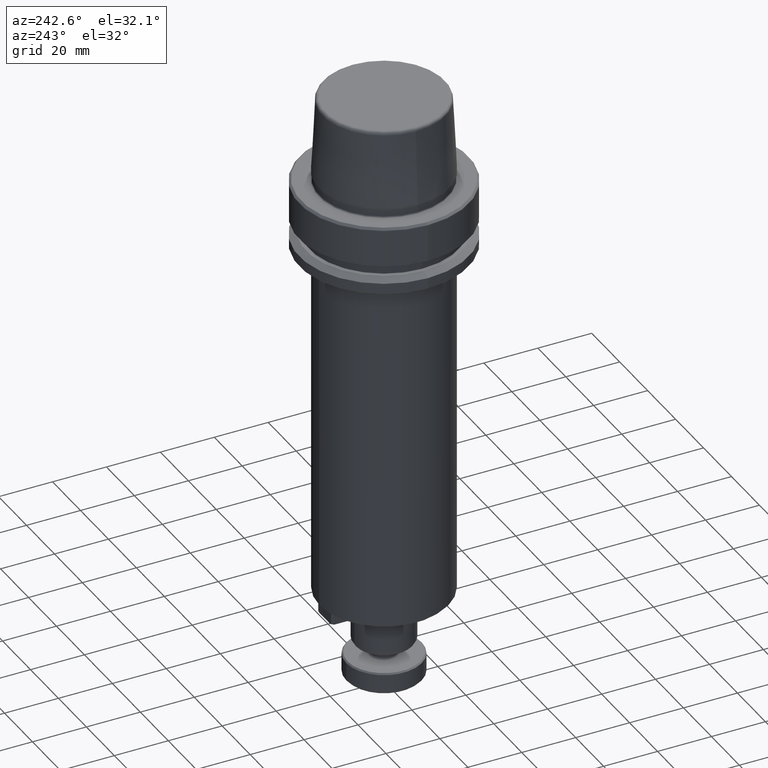
[diagram: clean part render]
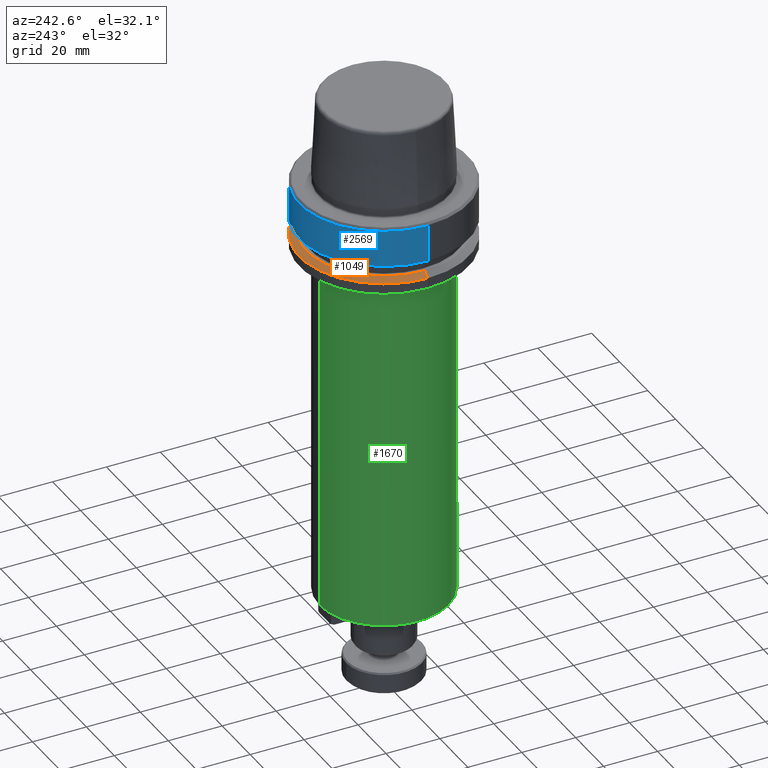
[diagram: same view with three faces highlighted in distinct colors, each labeled with its STEP entity id]
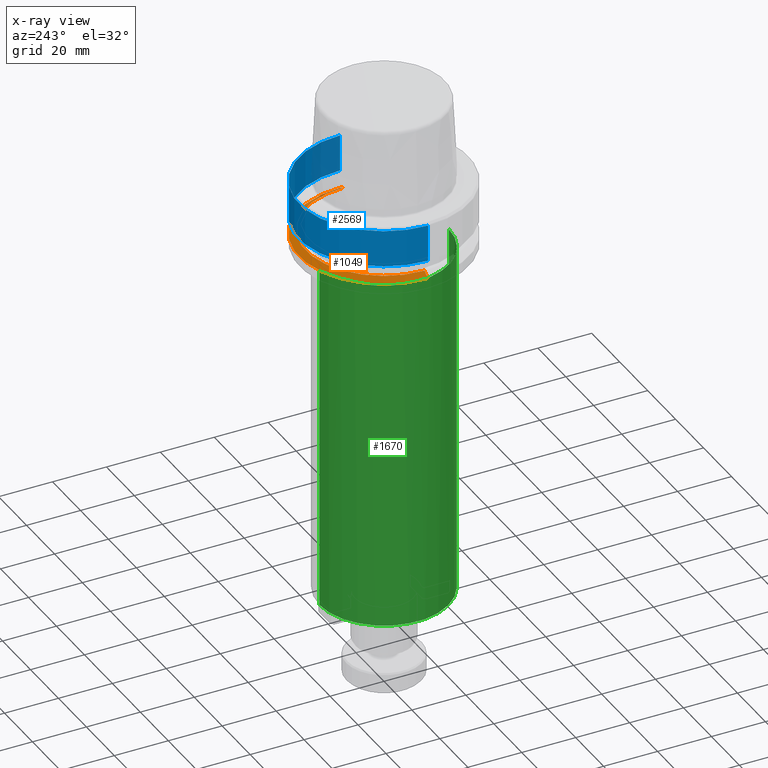
[diagram: x-ray of the same camera — body ghosted, the three highlighted faces saturated]
A machine part, auxiliary view with three faces highlighted in distinct colors.
The next image is the same camera in x-ray (body ghosted, the three faces saturated) — at least one of them is partly hidden behind the body in this view.
Their STEP definitions:

[orange] entity #1049 — the highlighted conical surface has half-angle 60 deg.
#37 = CARTESIAN_POINT ( 'NONE',  ( 0.0000000000000000000, 0.0000000000000000000, -21.37749907475931700 ) ) ;
#178 = DIRECTION ( 'NONE',  ( 0.0000000000000000000, 0.0000000000000000000, -1.000000000000000000 ) ) ;
#205 = ORIENTED_EDGE ( 'NONE', *, *, #2195, .T. ) ;
#208 = ORIENTED_EDGE ( 'NONE', *, *, #1834, .F. ) ;
#241 = CIRCLE ( 'NONE', #1373, 31.50000000000000000 ) ;
#245 = ORIENTED_EDGE ( 'NONE', *, *, #1929, .F. ) ;
#252 = DIRECTION ( 'NONE',  ( 1.000000000000000000, 0.0000000000000000000, 0.0000000000000000000 ) ) ;
#262 = CARTESIAN_POINT ( 'NONE',  ( 0.0000000000000000000, 0.0000000000000000000, -19.90000000000001600 ) ) ;
#299 = LINE ( 'NONE', #2300, #863 ) ;
#320 = CARTESIAN_POINT ( 'NONE',  ( -28.94089653438085100, 0.0000000000000000000, -19.90000000000001600 ) ) ;
#365 = EDGE_LOOP ( 'NONE', ( #208, #205, #2008, #245 ) ) ;
#475 = DIRECTION ( 'NONE',  ( 1.000000000000000000, 0.0000000000000000000, 0.0000000000000000000 ) ) ;
#503 = VERTEX_POINT ( 'NONE', #2680 ) ;
#598 = CIRCLE ( 'NONE', #1803, 28.94089653438085100 ) ;
#618 = CARTESIAN_POINT ( 'NONE',  ( 0.0000000000000000000, 0.0000000000000000000, -21.37749907475931700 ) ) ;
#753 = DIRECTION ( 'NONE',  ( 0.8660254037844410400, 1.060575238724909700E-016, -0.4999999999999958400 ) ) ;
#826 = LINE ( 'NONE', #2474, #1354 ) ;
#863 = VECTOR ( 'NONE', #753, 1000.000000000000100 ) ;
#969 = CARTESIAN_POINT ( 'NONE',  ( 31.50000000000000000, 0.0000000000000000000, -21.37749907475931700 ) ) ;
#1032 = DIRECTION ( 'NONE',  ( -1.000000000000000000, 0.0000000000000000000, 0.0000000000000000000 ) ) ;
#1049 = ADVANCED_FACE ( 'NONE', ( #2425 ), #1191, .T. ) ;
#1173 = CARTESIAN_POINT ( 'NONE',  ( 28.94089653438085100, 3.700937523921292900E-015, -19.90000000000001600 ) ) ;
#1191 = CONICAL_SURFACE ( 'NONE', #1387, 31.50000000000000000, 1.047197551196602500 ) ;
#1353 = VERTEX_POINT ( 'NONE', #320 ) ;
#1354 = VECTOR ( 'NONE', #1394, 1000.000000000000100 ) ;
#1373 = AXIS2_PLACEMENT_3D ( 'NONE', #37, #1555, #252 ) ;
#1387 = AXIS2_PLACEMENT_3D ( 'NONE', #618, #178, #1032 ) ;
#1394 = DIRECTION ( 'NONE',  ( -0.8660254037844410400, 0.0000000000000000000, -0.4999999999999958400 ) ) ;
#1555 = DIRECTION ( 'NONE',  ( -0.0000000000000000000, -0.0000000000000000000, 1.000000000000000000 ) ) ;
#1766 = EDGE_CURVE ( 'NONE', #2182, #503, #241, .T. ) ;
#1779 = DIRECTION ( 'NONE',  ( -0.0000000000000000000, -0.0000000000000000000, 1.000000000000000000 ) ) ;
#1803 = AXIS2_PLACEMENT_3D ( 'NONE', #262, #1779, #475 ) ;
#1834 = EDGE_CURVE ( 'NONE', #2116, #1353, #598, .T. ) ;
#1929 = EDGE_CURVE ( 'NONE', #1353, #503, #826, .T. ) ;
#2008 = ORIENTED_EDGE ( 'NONE', *, *, #1766, .T. ) ;
#2116 = VERTEX_POINT ( 'NONE', #1173 ) ;
#2182 = VERTEX_POINT ( 'NONE', #969 ) ;
#2195 = EDGE_CURVE ( 'NONE', #2116, #2182, #299, .T. ) ;
#2300 = CARTESIAN_POINT ( 'NONE',  ( 31.50000000000000000, 3.857637417314162700E-015, -21.37749907475931700 ) ) ;
#2425 = FACE_OUTER_BOUND ( 'NONE', #365, .T. ) ;
#2474 = CARTESIAN_POINT ( 'NONE',  ( -31.50000000000000000, 0.0000000000000000000, -21.37749907475931700 ) ) ;
#2680 = CARTESIAN_POINT ( 'NONE',  ( -31.50000000000000000, 3.857637417314162700E-015, -21.37749907475931700 ) ) ;

[blue] entity #2569 — the highlighted cylindrical surface (partial cylindrical patch) has radius 31.5 mm, axis along (-0, -0, 1).
#61 = DIRECTION ( 'NONE',  ( 1.000000000000000000, 0.0000000000000000000, 0.0000000000000000000 ) ) ;
#247 = EDGE_CURVE ( 'NONE', #1214, #2197, #507, .T. ) ;
#257 = CYLINDRICAL_SURFACE ( 'NONE', #843, 31.50000000000000000 ) ;
#399 = ORIENTED_EDGE ( 'NONE', *, *, #553, .F. ) ;
#418 = EDGE_CURVE ( 'NONE', #1214, #1420, #582, .T. ) ;
#491 = VECTOR ( 'NONE', #1809, 1000.000000000000000 ) ;
#507 = LINE ( 'NONE', #2785, #838 ) ;
#553 = EDGE_CURVE ( 'NONE', #2197, #1140, #1501, .T. ) ;
#582 = CIRCLE ( 'NONE', #2280, 31.50000000000000000 ) ;
#707 = CARTESIAN_POINT ( 'NONE',  ( -31.50000000000000000, 3.857637417314162700E-015, -14.62250092524070100 ) ) ;
#739 = CARTESIAN_POINT ( 'NONE',  ( 0.0000000000000000000, 0.0000000000000000000, -0.9656854249492363700 ) ) ;
#810 = ORIENTED_EDGE ( 'NONE', *, *, #2081, .T. ) ;
#838 = VECTOR ( 'NONE', #1459, 1000.000000000000000 ) ;
#843 = AXIS2_PLACEMENT_3D ( 'NONE', #2543, #2103, #1236 ) ;
#979 = CARTESIAN_POINT ( 'NONE',  ( 31.50000000000000700, 0.0000000000000000000, -0.9656854249492363700 ) ) ;
#1001 = CARTESIAN_POINT ( 'NONE',  ( 31.50000000000000000, 0.0000000000000000000, -14.62250092524070100 ) ) ;
#1140 = VERTEX_POINT ( 'NONE', #2387 ) ;
#1203 = AXIS2_PLACEMENT_3D ( 'NONE', #739, #1914, #2805 ) ;
#1211 = EDGE_LOOP ( 'NONE', ( #2489, #810, #399, #2492 ) ) ;
#1214 = VERTEX_POINT ( 'NONE', #1001 ) ;
#1236 = DIRECTION ( 'NONE',  ( 1.000000000000000000, 0.0000000000000000000, 0.0000000000000000000 ) ) ;
#1420 = VERTEX_POINT ( 'NONE', #707 ) ;
#1459 = DIRECTION ( 'NONE',  ( -0.0000000000000000000, -0.0000000000000000000, 1.000000000000000000 ) ) ;
#1501 = CIRCLE ( 'NONE', #1203, 31.50000000000000700 ) ;
#1668 = LINE ( 'NONE', #2690, #491 ) ;
#1718 = CARTESIAN_POINT ( 'NONE',  ( 0.0000000000000000000, 0.0000000000000000000, -14.62250092524070100 ) ) ;
#1809 = DIRECTION ( 'NONE',  ( -0.0000000000000000000, -0.0000000000000000000, 1.000000000000000000 ) ) ;
#1914 = DIRECTION ( 'NONE',  ( -0.0000000000000000000, -0.0000000000000000000, 1.000000000000000000 ) ) ;
#2081 = EDGE_CURVE ( 'NONE', #1420, #1140, #1668, .T. ) ;
#2103 = DIRECTION ( 'NONE',  ( -0.0000000000000000000, -0.0000000000000000000, 1.000000000000000000 ) ) ;
#2197 = VERTEX_POINT ( 'NONE', #979 ) ;
#2280 = AXIS2_PLACEMENT_3D ( 'NONE', #1718, #2407, #61 ) ;
#2387 = CARTESIAN_POINT ( 'NONE',  ( -31.50000000000000700, 3.857637417314163500E-015, -0.9656854249492363700 ) ) ;
#2407 = DIRECTION ( 'NONE',  ( -0.0000000000000000000, -0.0000000000000000000, 1.000000000000000000 ) ) ;
#2489 = ORIENTED_EDGE ( 'NONE', *, *, #418, .T. ) ;
#2492 = ORIENTED_EDGE ( 'NONE', *, *, #247, .F. ) ;
#2543 = CARTESIAN_POINT ( 'NONE',  ( 0.0000000000000000000, 0.0000000000000000000, 78.96908074195309300 ) ) ;
#2569 = ADVANCED_FACE ( 'NONE', ( #2572 ), #257, .T. ) ;
#2572 = FACE_OUTER_BOUND ( 'NONE', #1211, .T. ) ;
#2690 = CARTESIAN_POINT ( 'NONE',  ( -31.50000000000000000, 3.857637417314162700E-015, 78.96908074195309300 ) ) ;
#2785 = CARTESIAN_POINT ( 'NONE',  ( 31.50000000000000000, 0.0000000000000000000, 78.96908074195309300 ) ) ;
#2805 = DIRECTION ( 'NONE',  ( 1.000000000000000000, 0.0000000000000000000, 0.0000000000000000000 ) ) ;

[green] entity #1670 — the highlighted cylindrical surface (partial cylindrical patch) has radius 24 mm, axis along (-0, 0, -1).
#6 = EDGE_LOOP ( 'NONE', ( #2019, #2628, #1399, #916, #338 ) ) ;
#15 = VERTEX_POINT ( 'NONE', #148 ) ;
#148 = CARTESIAN_POINT ( 'NONE',  ( 2.939152317953648700E-015, -24.00000000000000400, -26.79999999999999000 ) ) ;
#217 = AXIS2_PLACEMENT_3D ( 'NONE', #2120, #2334, #580 ) ;
#246 = VERTEX_POINT ( 'NONE', #1069 ) ;
#338 = ORIENTED_EDGE ( 'NONE', *, *, #2211, .F. ) ;
#580 = DIRECTION ( 'NONE',  ( 0.0000000000000000000, 1.000000000000000000, 0.0000000000000000000 ) ) ;
#683 = DIRECTION ( 'NONE',  ( 0.0000000000000000000, 0.0000000000000000000, -1.000000000000000000 ) ) ;
#750 = CARTESIAN_POINT ( 'NONE',  ( 2.939152317953647900E-015, -23.99999999999999300, -179.0000000000000000 ) ) ;
#767 = CARTESIAN_POINT ( 'NONE',  ( 0.0000000000000000000, 6.387373501435212200E-015, -159.0000000000000000 ) ) ;
#779 = CARTESIAN_POINT ( 'NONE',  ( 0.0000000000000000000, 24.00000000000000700, -179.0000000000000000 ) ) ;
#916 = ORIENTED_EDGE ( 'NONE', *, *, #2556, .T. ) ;
#981 = DIRECTION ( 'NONE',  ( -0.0000000000000000000, 4.802536467244522200E-017, -1.000000000000000000 ) ) ;
#990 = DIRECTION ( 'NONE',  ( 0.0000000000000000000, 1.000000000000000000, 0.0000000000000000000 ) ) ;
#1008 = CYLINDRICAL_SURFACE ( 'NONE', #217, 24.00000000000000000 ) ;
#1022 = CARTESIAN_POINT ( 'NONE',  ( 2.939152317953647900E-015, -23.99999999999999300, -159.0000000000000000 ) ) ;
#1069 = CARTESIAN_POINT ( 'NONE',  ( 0.0000000000000000000, 24.00000000000000700, -159.0000000000000000 ) ) ;
#1073 = VERTEX_POINT ( 'NONE', #1083 ) ;
#1083 = CARTESIAN_POINT ( 'NONE',  ( 0.0000000000000000000, 24.00000000000000000, -26.79999999999999000 ) ) ;
#1138 = CARTESIAN_POINT ( 'NONE',  ( 0.0000000000000000000, 3.842029173795358600E-017, -26.79999999999999000 ) ) ;
#1270 = AXIS2_PLACEMENT_3D ( 'NONE', #767, #2307, #990 ) ;
#1325 = CIRCLE ( 'NONE', #1270, 24.00000000000000000 ) ;
#1366 = DIRECTION ( 'NONE',  ( 1.000000000000000000, 0.0000000000000000000, 0.0000000000000000000 ) ) ;
#1399 = ORIENTED_EDGE ( 'NONE', *, *, #1868, .T. ) ;
#1485 = LINE ( 'NONE', #779, #2640 ) ;
#1670 = ADVANCED_FACE ( 'NONE', ( #2756 ), #1008, .T. ) ;
#1760 = VERTEX_POINT ( 'NONE', #1969 ) ;
#1868 = EDGE_CURVE ( 'NONE', #1760, #1073, #2152, .T. ) ;
#1872 = EDGE_CURVE ( 'NONE', #15, #1760, #2212, .T. ) ;
#1969 = CARTESIAN_POINT ( 'NONE',  ( -24.00000000000000000, 3.026558481657495700E-015, -26.79999999999999000 ) ) ;
#2009 = CARTESIAN_POINT ( 'NONE',  ( 0.0000000000000000000, 3.842029173795358600E-017, -26.79999999999999000 ) ) ;
#2019 = ORIENTED_EDGE ( 'NONE', *, *, #2521, .F. ) ;
#2101 = AXIS2_PLACEMENT_3D ( 'NONE', #2009, #683, #2233 ) ;
#2120 = CARTESIAN_POINT ( 'NONE',  ( 0.0000000000000000000, 7.347880794884116800E-015, -179.0000000000000000 ) ) ;
#2152 = CIRCLE ( 'NONE', #2101, 24.00000000000000000 ) ;
#2211 = EDGE_CURVE ( 'NONE', #2273, #246, #1325, .T. ) ;
#2212 = CIRCLE ( 'NONE', #2249, 24.00000000000000000 ) ;
#2233 = DIRECTION ( 'NONE',  ( 1.000000000000000000, 0.0000000000000000000, 0.0000000000000000000 ) ) ;
#2249 = AXIS2_PLACEMENT_3D ( 'NONE', #1138, #2679, #1366 ) ;
#2273 = VERTEX_POINT ( 'NONE', #1022 ) ;
#2307 = DIRECTION ( 'NONE',  ( -0.0000000000000000000, 4.802536467244522200E-017, -1.000000000000000000 ) ) ;
#2326 = DIRECTION ( 'NONE',  ( -0.0000000000000000000, 4.802536467244522200E-017, -1.000000000000000000 ) ) ;
#2334 = DIRECTION ( 'NONE',  ( -0.0000000000000000000, 4.802536467244522200E-017, -1.000000000000000000 ) ) ;
#2521 = EDGE_CURVE ( 'NONE', #15, #2273, #2780, .T. ) ;
#2556 = EDGE_CURVE ( 'NONE', #1073, #246, #1485, .T. ) ;
#2628 = ORIENTED_EDGE ( 'NONE', *, *, #1872, .T. ) ;
#2640 = VECTOR ( 'NONE', #2326, 1000.000000000000000 ) ;
#2679 = DIRECTION ( 'NONE',  ( 0.0000000000000000000, 0.0000000000000000000, -1.000000000000000000 ) ) ;
#2713 = VECTOR ( 'NONE', #981, 1000.000000000000000 ) ;
#2756 = FACE_OUTER_BOUND ( 'NONE', #6, .T. ) ;
#2780 = LINE ( 'NONE', #750, #2713 ) ;